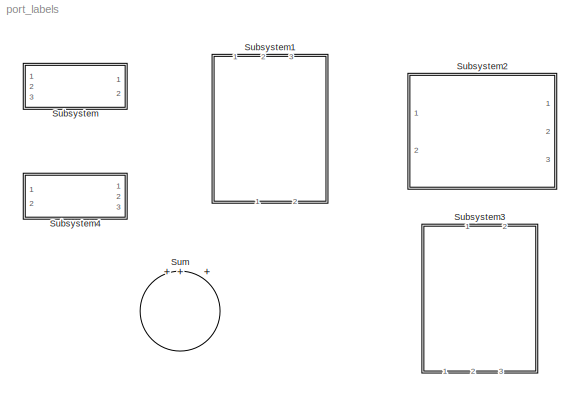
MODEL port_labels
KIND model
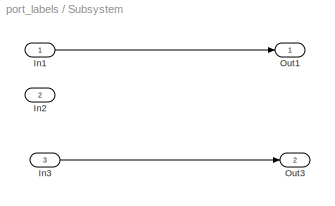
BLOCK [SubSystem] Subsystem
  Ports = [3, 2]
  RequestExecContextInheritance = off
  SID = 1
BLOCK [Inport] Subsystem/In1
  IconDisplay = Port number
  SID = 2
BLOCK [Inport] Subsystem/In2
  IconDisplay = Port number
  Port = 2
  SID = 4
BLOCK [Inport] Subsystem/In3
  IconDisplay = Port number
  Port = 3
  SID = 6
BLOCK [Outport] Subsystem/Out1
  IconDisplay = Port number
  SID = 3
BLOCK [Outport] Subsystem/Out3
  IconDisplay = Port number
  Port = 2
  SID = 7
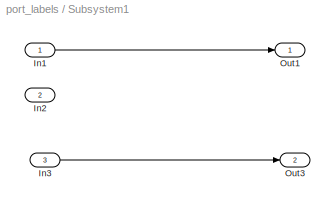
BLOCK [SubSystem] Subsystem1
  Ports = [3, 2]
  RequestExecContextInheritance = off
  SID = 8
BLOCK [Inport] Subsystem1/In1
  IconDisplay = Port number
  SID = 9
BLOCK [Inport] Subsystem1/In2
  IconDisplay = Port number
  Port = 2
  SID = 10
BLOCK [Inport] Subsystem1/In3
  IconDisplay = Port number
  Port = 3
  SID = 11
BLOCK [Outport] Subsystem1/Out1
  IconDisplay = Port number
  SID = 12
BLOCK [Outport] Subsystem1/Out3
  IconDisplay = Port number
  Port = 2
  SID = 13
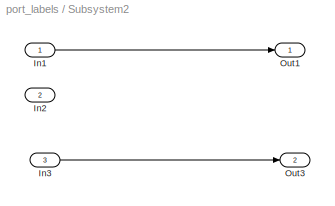
BLOCK [SubSystem] Subsystem2
  Ports = [3, 2]
  RequestExecContextInheritance = off
  SID = 14
BLOCK [Inport] Subsystem2/In1
  IconDisplay = Port number
  SID = 15
BLOCK [Inport] Subsystem2/In2
  IconDisplay = Port number
  Port = 2
  SID = 16
BLOCK [Inport] Subsystem2/In3
  IconDisplay = Port number
  Port = 3
  SID = 17
BLOCK [Outport] Subsystem2/Out1
  IconDisplay = Port number
  SID = 18
BLOCK [Outport] Subsystem2/Out3
  IconDisplay = Port number
  Port = 2
  SID = 19
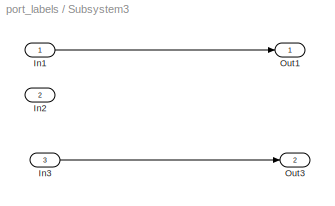
BLOCK [SubSystem] Subsystem3
  Ports = [3, 2]
  RequestExecContextInheritance = off
  SID = 20
BLOCK [Inport] Subsystem3/In1
  IconDisplay = Port number
  SID = 21
BLOCK [Inport] Subsystem3/In2
  IconDisplay = Port number
  Port = 2
  SID = 22
BLOCK [Inport] Subsystem3/In3
  IconDisplay = Port number
  Port = 3
  SID = 23
BLOCK [Outport] Subsystem3/Out1
  IconDisplay = Port number
  SID = 24
BLOCK [Outport] Subsystem3/Out3
  IconDisplay = Port number
  Port = 2
  SID = 25
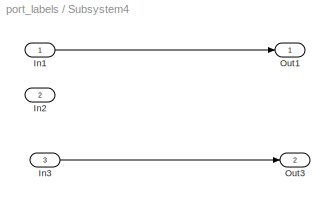
BLOCK [SubSystem] Subsystem4
  Ports = [3, 2]
  RequestExecContextInheritance = off
  SID = 26
BLOCK [Inport] Subsystem4/In1
  IconDisplay = Port number
  SID = 27
BLOCK [Inport] Subsystem4/In2
  IconDisplay = Port number
  Port = 2
  SID = 28
BLOCK [Inport] Subsystem4/In3
  IconDisplay = Port number
  Port = 3
  SID = 29
BLOCK [Outport] Subsystem4/Out1
  IconDisplay = Port number
  SID = 30
BLOCK [Outport] Subsystem4/Out3
  IconDisplay = Port number
  Port = 2
  SID = 31
BLOCK [Sum] Sum
  IconShape = round
  InputSameDT = off
  Inputs = |++|++-
  OutDataTypeStr = Inherit: Inherit via internal rule
  Ports = [5, 1]
  SID = 32
  SaturateOnIntegerOverflow = off
LINE Subsystem/In1:1 -> Subsystem/Out1:1
LINE Subsystem/In3:1 -> Subsystem/Out3:1
LINE Subsystem1/In1:1 -> Subsystem1/Out1:1
LINE Subsystem1/In3:1 -> Subsystem1/Out3:1
LINE Subsystem2/In1:1 -> Subsystem2/Out1:1
LINE Subsystem2/In3:1 -> Subsystem2/Out3:1
LINE Subsystem3/In1:1 -> Subsystem3/Out1:1
LINE Subsystem3/In3:1 -> Subsystem3/Out3:1
LINE Subsystem4/In1:1 -> Subsystem4/Out1:1
LINE Subsystem4/In3:1 -> Subsystem4/Out3:1
